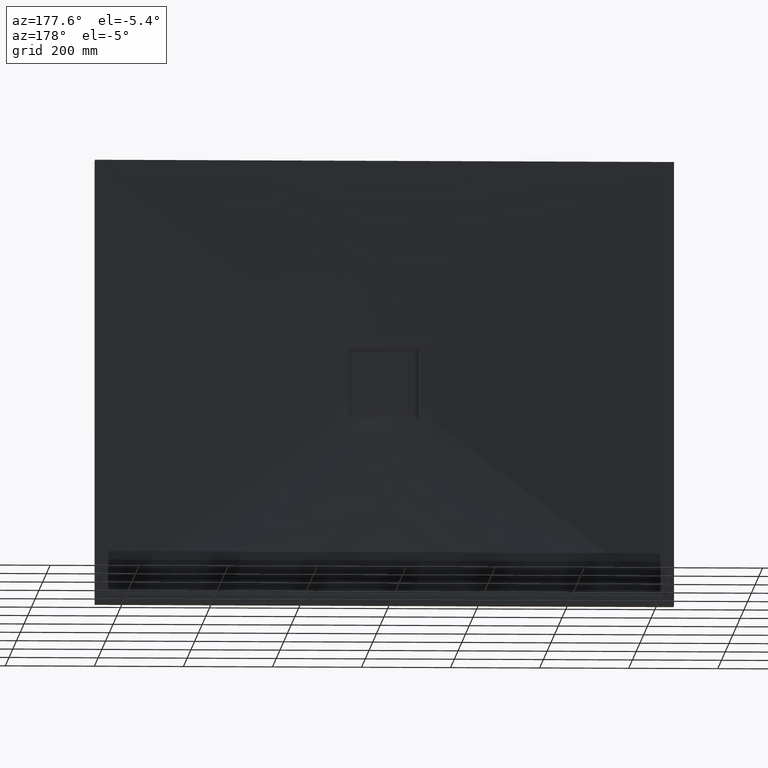
[diagram: clean part render]
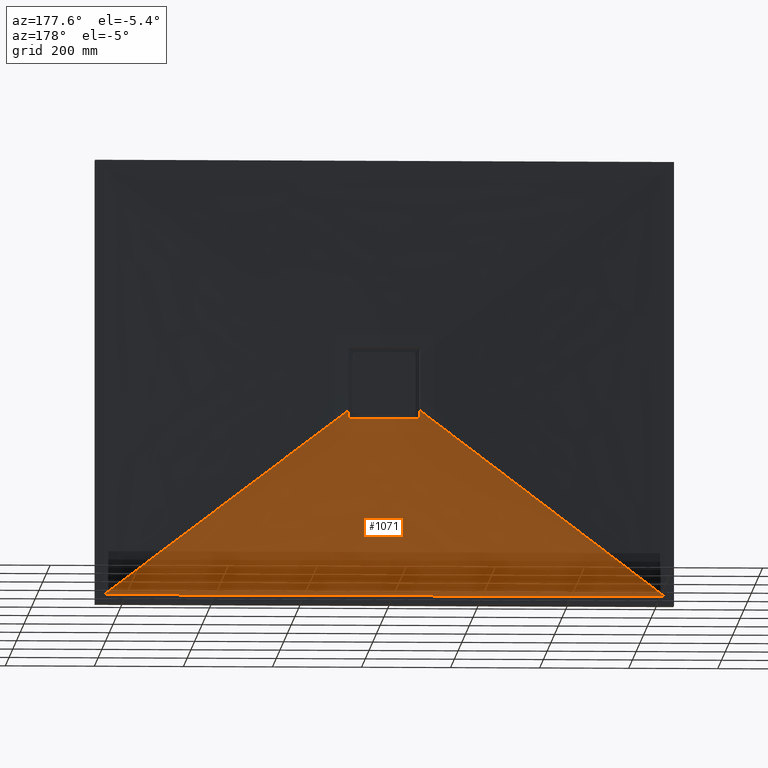
[diagram: same view with one face highlighted and labeled with its STEP entity id]
A machine part, auxiliary view. The second image highlights one B-rep face of the part: STEP entity #1071.
In plain terms, the highlighted face is a freeform B-spline surface patch.
Its self-contained STEP definition (entity closure, byte-faithful):
#17 = CARTESIAN_POINT ( 'NONE',  ( -77.83013383340996000, 20.77111493192463200, -79.99999999999977300 ) ) ;
#60 = CARTESIAN_POINT ( 'NONE',  ( -183.7500000000001100, 35.00000000000000000, -479.9999999999997700 ) ) ;
#69 = VERTEX_POINT ( 'NONE', #1480 ) ;
#120 = CARTESIAN_POINT ( 'NONE',  ( -62.02765094549793200, 20.00000000000000400, -50.59249595847453000 ) ) ;
#128 = B_SPLINE_SURFACE_WITH_KNOTS ( 'NONE', 3, 1, ( 
 ( #1406, #460 ),
 ( #1544, #120 ),
 ( #1231, #620 ),
 ( #930, #1149 ),
 ( #1191, #1207 ),
 ( #840, #1271 ),
 ( #3098, #3223 ),
 ( #2717, #1665 ),
 ( #2258, #215 ),
 ( #1895, #2247 ),
 ( #2444, #2519 ),
 ( #2743, #2526 ),
 ( #60, #2722 ),
 ( #3010, #1915 ),
 ( #2237, #2582 ),
 ( #2861, #2637 ),
 ( #2923, #2802 ),
 ( #3229, #2699 ),
 ( #1807, #3087 ),
 ( #974, #1418 ),
 ( #3151, #2707 ),
 ( #3214, #2860 ),
 ( #380, #1387 ),
 ( #1792, #1602 ),
 ( #1627, #3210 ),
 ( #1280, #2422 ),
 ( #3231, #3052 ),
 ( #291, #3041 ),
 ( #3150, #3130 ),
 ( #1205, #1634 ),
 ( #2627, #2652 ),
 ( #2799, #2788 ),
 ( #1744, #1794 ),
 ( #1682, #1570 ) ),
 .UNSPECIFIED., .F., .F., .F.,
 ( 4, 2, 2, 2, 2, 2, 2, 2, 2, 2, 2, 2, 2, 2, 2, 2, 4 ),
 ( 2, 2 ),
 ( 0.0000000000000000000, 0.06249999999999998600, 0.1249999999999999700, 0.1874999999999999400, 0.2499999999999999400, 0.3124999999999999400, 0.3749999999999999400, 0.4375000000000000000, 0.5000000000000000000, 0.5625000000000000000, 0.6250000000000000000, 0.6875000000000000000, 0.7499999999999998900, 0.8124999999999998900, 0.8749999999999998900, 0.9374999999999998900, 1.000000000000000000 ),
 ( 0.0000000000000000000, 1.000000000000000000 ),
 .UNSPECIFIED. ) ;
#178 = DIRECTION ( 'NONE',  ( -0.7952552694127662500, 0.02106207004695746800, -0.6059087766954408500 ) ) ;
#208 = CARTESIAN_POINT ( 'NONE',  ( -79.99999999999988600, 20.74732183500850600, -77.66504128352703200 ) ) ;
#215 = CARTESIAN_POINT ( 'NONE',  ( -40.08407614180718100, 20.00000000000000000, -69.30328596002011900 ) ) ;
#291 = CARTESIAN_POINT ( 'NONE',  ( 419.9999999999998300, 35.00000000000000000, -479.9999999999997700 ) ) ;
#301 = CARTESIAN_POINT ( 'NONE',  ( -79.48917334443649500, 20.77024405458885800, -79.02310493736166600 ) ) ;
#306 = CARTESIAN_POINT ( 'NONE',  ( -79.87240746309515800, 20.75946612219778900, -78.30529689576413000 ) ) ;
#380 = CARTESIAN_POINT ( 'NONE',  ( 209.9999999999999700, 35.00000000000000000, -479.9999999999997700 ) ) ;
#397 = CARTESIAN_POINT ( 'NONE',  ( -77.49999999999990100, 20.76700183150386500, -79.99999999999978700 ) ) ;
#427 = CARTESIAN_POINT ( 'NONE',  ( -79.38368841958650500, 20.77173863210858300, -79.15175372211837200 ) ) ;
#460 = CARTESIAN_POINT ( 'NONE',  ( -63.63453760259979200, 20.00000000000000000, -48.48345722102833100 ) ) ;
#555 = CARTESIAN_POINT ( 'NONE',  ( -630.0000000000000000, 35.00000000000000000, -479.9999999999997700 ) ) ;
#567 = CARTESIAN_POINT ( 'NONE',  ( -12.91761545422881800, 19.99999999479202700, -79.99999999999990100 ) ) ;
#568 = DIRECTION ( 'NONE',  ( -1.000000000000000000, 0.0000000000000000000, 0.0000000000000000000 ) ) ;
#576 = CARTESIAN_POINT ( 'NONE',  ( 80.00000000000007100, 20.43343380248132800, -60.95238095238072900 ) ) ;
#614 = EDGE_CURVE ( 'NONE', #69, #951, #2820, .T. ) ;
#620 = CARTESIAN_POINT ( 'NONE',  ( -60.27596481643419700, 19.99999999999999600, -52.67385688764414900 ) ) ;
#676 = B_SPLINE_CURVE_WITH_KNOTS ( 'NONE', 3,
 ( #2911, #2907, #2710, #2679, #2654, #2645, #2638, #2603, #2592, #2583, #2578, #2576, #2570, #2565, #2562, #2555 ),
 .UNSPECIFIED., .F., .F.,
 ( 4, 2, 2, 2, 2, 2, 2, 4 ),
 ( 0.0000000000000000000, 0.0004882090771414265800, 0.0009764181542828531500, 0.001464627231424279700, 0.001952836308565706300, 0.002441045385707133100, 0.002929254462848559500, 0.003905672617131428200 ),
 .UNSPECIFIED. ) ;
#697 = CARTESIAN_POINT ( 'NONE',  ( 80.00000000000007100, 20.62615168107612700, -71.98439320507120000 ) ) ;
#710 = VERTEX_POINT ( 'NONE', #2530 ) ;
#729 = EDGE_LOOP ( 'NONE', ( #1965, #1341, #2070, #1333, #1998, #2038, #2461, #1330 ) ) ;
#758 = VERTEX_POINT ( 'NONE', #2394 ) ;
#768 = CARTESIAN_POINT ( 'NONE',  ( -25.83430992047735600, 20.12761234536860000, -79.99999999999981500 ) ) ;
#805 = CARTESIAN_POINT ( 'NONE',  ( -79.99999999999990100, 20.74380144834592700, -77.49999999999978700 ) ) ;
#812 = CARTESIAN_POINT ( 'NONE',  ( -79.99999999999990100, 20.62615168107612000, -71.98439320507118600 ) ) ;
#840 = CARTESIAN_POINT ( 'NONE',  ( -446.2500000000001700, 35.00000000000000000, -479.9999999999997700 ) ) ;
#846 = CARTESIAN_POINT ( 'NONE',  ( -79.99999999999990100, 20.52223896363835500, -66.46852875761838700 ) ) ;
#857 = CARTESIAN_POINT ( 'NONE',  ( -79.99999999999990100, 20.43343380248133200, -60.95238095238072900 ) ) ;
#930 = CARTESIAN_POINT ( 'NONE',  ( -525.0000000000000000, 35.00000000000000000, -479.9999999999997700 ) ) ;
#951 = VERTEX_POINT ( 'NONE', #555 ) ;
#974 = CARTESIAN_POINT ( 'NONE',  ( 104.9999999999999600, 35.00000000000000000, -479.9999999999997700 ) ) ;
#1008 = CARTESIAN_POINT ( 'NONE',  ( 630.0000000000000000, 35.00000000000000000, -479.9999999999997700 ) ) ;
#1071 = ADVANCED_FACE ( 'NONE', ( #1566 ), #128, .F. ) ;
#1094 = CARTESIAN_POINT ( 'NONE',  ( -79.99999999999990100, 20.74380144834592700, -77.49999999999978700 ) ) ;
#1149 = CARTESIAN_POINT ( 'NONE',  ( -56.47447127145660100, 19.99999999999999600, -56.73060222297532100 ) ) ;
#1191 = CARTESIAN_POINT ( 'NONE',  ( -498.7500000000000600, 35.00000000000000000, -479.9999999999997700 ) ) ;
#1192 = CARTESIAN_POINT ( 'NONE',  ( -78.15820142488065900, 20.77371266000730900, -79.93366064027218000 ) ) ;
#1205 = CARTESIAN_POINT ( 'NONE',  ( 498.7499999999998900, 35.00000000000000000, -479.9999999999997700 ) ) ;
#1207 = CARTESIAN_POINT ( 'NONE',  ( -54.42457515775831900, 20.00000000000000700, -58.70591302239565600 ) ) ;
#1231 = CARTESIAN_POINT ( 'NONE',  ( -577.5000000000000000, 35.00000000000000000, -479.9999999999997700 ) ) ;
#1271 = CARTESIAN_POINT ( 'NONE',  ( -50.02882088416853900, 19.99999999999999600, -62.49428522541358400 ) ) ;
#1280 = CARTESIAN_POINT ( 'NONE',  ( 341.2499999999998300, 35.00000000000000000, -479.9999999999997200 ) ) ;
#1294 = CARTESIAN_POINT ( 'NONE',  ( -77.49999999999990100, 20.76700183150386500, -79.99999999999978700 ) ) ;
#1316 = EDGE_CURVE ( 'NONE', #710, #3092, #2483, .T. ) ;
#1330 = ORIENTED_EDGE ( 'NONE', *, *, #614, .T. ) ;
#1333 = ORIENTED_EDGE ( 'NONE', *, *, #2155, .T. ) ;
#1339 = CARTESIAN_POINT ( 'NONE',  ( -64.58359099330736800, 20.60607773968488500, -79.99999999999978700 ) ) ;
#1341 = ORIENTED_EDGE ( 'NONE', *, *, #3048, .T. ) ;
#1356 = CARTESIAN_POINT ( 'NONE',  ( 80.00000000000007100, 20.74380144834592300, -77.49999999999981500 ) ) ;
#1387 = CARTESIAN_POINT ( 'NONE',  ( 25.74669117446027400, 20.00000000000000700, -75.81091631001236000 ) ) ;
#1406 = CARTESIAN_POINT ( 'NONE',  ( -630.0000000000000000, 35.00000000000000000, -479.9999999999997700 ) ) ;
#1418 = CARTESIAN_POINT ( 'NONE',  ( 13.13176673591431200, 20.00000000000000700, -78.98338861590235600 ) ) ;
#1474 = CARTESIAN_POINT ( 'NONE',  ( 12.91761716792308200, 20.00000000520797300, -79.99999999999988600 ) ) ;
#1480 = CARTESIAN_POINT ( 'NONE',  ( 630.0000000000000000, 35.00000000000000000, -479.9999999999997700 ) ) ;
#1544 = CARTESIAN_POINT ( 'NONE',  ( -603.7500000000000000, 35.00000000000000000, -479.9999999999997700 ) ) ;
#1557 = B_SPLINE_CURVE_WITH_KNOTS ( 'NONE', 3,
 ( #1294, #1339, #1991, #768, #567, #1474, #1590, #1694, #2338, #2456 ),
 .UNSPECIFIED., .F., .F.,
 ( 4, 2, 2, 2, 4 ),
 ( 0.0000000000000000000, 0.03875223411165092800, 0.07750446822330185600, 0.1162567023349528100, 0.1550089364466037100 ),
 .UNSPECIFIED. ) ;
#1562 = CARTESIAN_POINT ( 'NONE',  ( 80.00000000000007100, 20.52223896363834800, -66.46852875761837300 ) ) ;
#1566 = FACE_OUTER_BOUND ( 'NONE', #729, .T. ) ;
#1568 = CARTESIAN_POINT ( 'NONE',  ( 80.00000000000007100, 20.43343380248132800, -60.95238095238072900 ) ) ;
#1570 = CARTESIAN_POINT ( 'NONE',  ( 63.63453760260011200, 20.00000000000000000, -48.48345722102835300 ) ) ;
#1590 = CARTESIAN_POINT ( 'NONE',  ( 25.83431059924156500, 20.12761235266777500, -79.99999999999982900 ) ) ;
#1602 = CARTESIAN_POINT ( 'NONE',  ( 31.70444263281839500, 20.00000000000000400, -73.51881021574720900 ) ) ;
#1627 = CARTESIAN_POINT ( 'NONE',  ( 288.7499999999998300, 35.00000000000000000, -479.9999999999997700 ) ) ;
#1634 = CARTESIAN_POINT ( 'NONE',  ( 54.42457515775861100, 20.00000000000000000, -58.70591302239567000 ) ) ;
#1663 = VERTEX_POINT ( 'NONE', #1094 ) ;
#1665 = CARTESIAN_POINT ( 'NONE',  ( -42.71053736607542100, 20.00000000000000000, -67.71180736043912400 ) ) ;
#1682 = CARTESIAN_POINT ( 'NONE',  ( 630.0000000000000000, 35.00000000000000000, -479.9999999999997700 ) ) ;
#1694 = CARTESIAN_POINT ( 'NONE',  ( 51.66733386739112200, 20.43308867103673500, -79.99999999999982900 ) ) ;
#1744 = CARTESIAN_POINT ( 'NONE',  ( 603.7500000000000000, 35.00000000000000000, -479.9999999999997700 ) ) ;
#1792 = CARTESIAN_POINT ( 'NONE',  ( 262.4999999999998900, 35.00000000000000000, -479.9999999999997700 ) ) ;
#1794 = CARTESIAN_POINT ( 'NONE',  ( 62.02765094549825200, 20.00000000000000400, -50.59249595847457200 ) ) ;
#1807 = CARTESIAN_POINT ( 'NONE',  ( 52.49999999999995000, 35.00000000000000000, -479.9999999999997700 ) ) ;
#1818 = VERTEX_POINT ( 'NONE', #2782 ) ;
#1877 = CARTESIAN_POINT ( 'NONE',  ( -79.15324827446951900, 20.77391981643277300, -79.38237683888743800 ) ) ;
#1895 = CARTESIAN_POINT ( 'NONE',  ( -288.7500000000001700, 35.00000000000000000, -479.9999999999997700 ) ) ;
#1905 = VERTEX_POINT ( 'NONE', #2573 ) ;
#1915 = CARTESIAN_POINT ( 'NONE',  ( -16.35806514207124000, 19.99999999999999300, -78.37722261512209300 ) ) ;
#1965 = ORIENTED_EDGE ( 'NONE', *, *, #2075, .F. ) ;
#1991 = CARTESIAN_POINT ( 'NONE',  ( -51.66733347422316300, 20.43308866566028900, -79.99999999999984400 ) ) ;
#1998 = ORIENTED_EDGE ( 'NONE', *, *, #2862, .T. ) ;
#2038 = ORIENTED_EDGE ( 'NONE', *, *, #1316, .T. ) ;
#2064 = B_SPLINE_CURVE_WITH_KNOTS ( 'NONE', 3,
 ( #857, #846, #812, #805 ),
 .UNSPECIFIED., .F., .F.,
 ( 4, 4 ),
 ( 0.0000000000000000000, 0.01655052942418231900 ),
 .UNSPECIFIED. ) ;
#2070 = ORIENTED_EDGE ( 'NONE', *, *, #2463, .T. ) ;
#2075 = EDGE_CURVE ( 'NONE', #1905, #951, #2454, .T. ) ;
#2098 = CARTESIAN_POINT ( 'NONE',  ( -346.8172688012999200, 27.50000000000000400, -264.2417286105140300 ) ) ;
#2137 = B_SPLINE_CURVE_WITH_KNOTS ( 'NONE', 3,
 ( #3033, #208, #2752, #3066, #306, #2703, #3298, #301, #427, #1877, #2606, #2672, #2809, #1192, #17, #397 ),
 .UNSPECIFIED., .F., .F.,
 ( 4, 2, 2, 2, 2, 2, 2, 4 ),
 ( 0.0000000000000000000, 0.0004882091195988505500, 0.0009764182391977010900, 0.001464627358796551500, 0.001952836478395402200, 0.002441045597994252800, 0.002929254717593103100, 0.003905672956790787900 ),
 .UNSPECIFIED. ) ;
#2155 = EDGE_CURVE ( 'NONE', #1818, #758, #1557, .T. ) ;
#2237 = CARTESIAN_POINT ( 'NONE',  ( -105.0000000000000700, 35.00000000000000000, -479.9999999999997700 ) ) ;
#2247 = CARTESIAN_POINT ( 'NONE',  ( -34.58101931222903100, 19.99999999999999600, -72.20686745958281000 ) ) ;
#2258 = CARTESIAN_POINT ( 'NONE',  ( -341.2500000000001700, 35.00000000000000000, -479.9999999999997700 ) ) ;
#2298 = DIRECTION ( 'NONE',  ( -0.7952552694127661400, -0.02106207004695747500, 0.6059087766954409600 ) ) ;
#2338 = CARTESIAN_POINT ( 'NONE',  ( 64.58359117223096700, 20.60607774191406700, -79.99999999999977300 ) ) ;
#2363 = VECTOR ( 'NONE', #178, 1000.000000000000100 ) ;
#2394 = CARTESIAN_POINT ( 'NONE',  ( 77.50000000000007100, 20.76700183150386500, -79.99999999999981500 ) ) ;
#2422 = CARTESIAN_POINT ( 'NONE',  ( 40.08407614180748600, 20.00000000000000000, -69.30328596002011900 ) ) ;
#2444 = CARTESIAN_POINT ( 'NONE',  ( -262.5000000000001100, 35.00000000000000000, -479.9999999999997700 ) ) ;
#2454 = LINE ( 'NONE', #2098, #2363 ) ;
#2456 = CARTESIAN_POINT ( 'NONE',  ( 77.50000000000007100, 20.76700183150386500, -79.99999999999981500 ) ) ;
#2461 = ORIENTED_EDGE ( 'NONE', *, *, #2925, .F. ) ;
#2463 = EDGE_CURVE ( 'NONE', #1663, #1818, #2137, .T. ) ;
#2464 = CARTESIAN_POINT ( 'NONE',  ( 346.8172688013000300, 27.50000000000000400, -264.2417286105140300 ) ) ;
#2483 = B_SPLINE_CURVE_WITH_KNOTS ( 'NONE', 3,
 ( #1356, #697, #1562, #1568 ),
 .UNSPECIFIED., .F., .F.,
 ( 4, 4 ),
 ( 0.0000000000000000000, 0.01655052942418238200 ),
 .UNSPECIFIED. ) ;
#2519 = CARTESIAN_POINT ( 'NONE',  ( -31.70444263281809700, 20.00000000000000700, -73.51881021574720900 ) ) ;
#2526 = CARTESIAN_POINT ( 'NONE',  ( -25.74669117445996500, 20.00000000000000000, -75.81091631001236000 ) ) ;
#2530 = CARTESIAN_POINT ( 'NONE',  ( 80.00000000000007100, 20.74380144834592300, -77.49999999999981500 ) ) ;
#2553 = LINE ( 'NONE', #2464, #3284 ) ;
#2555 = CARTESIAN_POINT ( 'NONE',  ( 80.00000000000007100, 20.74380144834592300, -77.49999999999981500 ) ) ;
#2562 = CARTESIAN_POINT ( 'NONE',  ( 80.00000000000008500, 20.75084220781003100, -77.83008191722649400 ) ) ;
#2565 = CARTESIAN_POINT ( 'NONE',  ( 79.93368285783046200, 20.75705102764942500, -78.15810168313754500 ) ) ;
#2570 = CARTESIAN_POINT ( 'NONE',  ( 79.74649166720496400, 20.76445391716052700, -78.60894215748159300 ) ) ;
#2573 = CARTESIAN_POINT ( 'NONE',  ( -79.99999999999990100, 20.43343380248133200, -60.95238095238072900 ) ) ;
#2576 = CARTESIAN_POINT ( 'NONE',  ( 79.66878316668174900, 20.76663679275834400, -78.75433956627051700 ) ) ;
#2578 = CARTESIAN_POINT ( 'NONE',  ( 79.48599130760138100, 20.77029712327749400, -79.02735938721890800 ) ) ;
#2582 = CARTESIAN_POINT ( 'NONE',  ( -13.13176673591400600, 20.00000000000000400, -78.98338861590234200 ) ) ;
#2583 = CARTESIAN_POINT ( 'NONE',  ( 79.38250338781479300, 20.77175338085107000, -79.15310396375990400 ) ) ;
#2592 = CARTESIAN_POINT ( 'NONE',  ( 79.15190116309699400, 20.77392899616415200, -79.38355893655909800 ) ) ;
#2603 = CARTESIAN_POINT ( 'NONE',  ( 79.02325937032105700, 20.77464682401055300, -79.48905620670426200 ) ) ;
#2606 = CARTESIAN_POINT ( 'NONE',  ( -79.02751007781263600, 20.77462972907653000, -79.48587555323236100 ) ) ;
#2627 = CARTESIAN_POINT ( 'NONE',  ( 524.9999999999997700, 35.00000000000000000, -479.9999999999997700 ) ) ;
#2637 = CARTESIAN_POINT ( 'NONE',  ( -6.603559328199009000, 20.00000000000000700, -79.79481173018750400 ) ) ;
#2638 = CARTESIAN_POINT ( 'NONE',  ( 78.75158657020142500, 20.77526099015685900, -79.67029831129067900 ) ) ;
#2645 = CARTESIAN_POINT ( 'NONE',  ( 78.60804519854212900, 20.77517205371263400, -79.74701160803317600 ) ) ;
#2652 = CARTESIAN_POINT ( 'NONE',  ( 56.47447127145692000, 19.99999999999999600, -56.73060222297532800 ) ) ;
#2654 = CARTESIAN_POINT ( 'NONE',  ( 78.30541218609803900, 20.77418561963472500, -79.87236939348251500 ) ) ;
#2672 = CARTESIAN_POINT ( 'NONE',  ( -78.75450106361333300, 20.77526169303582300, -79.66868988842067300 ) ) ;
#2679 = CARTESIAN_POINT ( 'NONE',  ( 78.14672664606789000, 20.77327917103214400, -79.92038139260090200 ) ) ;
#2699 = CARTESIAN_POINT ( 'NONE',  ( 3.301827798377353000, 19.99999999999999300, -79.99999999999985800 ) ) ;
#2703 = CARTESIAN_POINT ( 'NONE',  ( -79.74707804726944000, 20.76443879332035200, -78.60790816891865500 ) ) ;
#2707 = CARTESIAN_POINT ( 'NONE',  ( 16.35806514207155300, 19.99999999999999600, -78.37722261512209300 ) ) ;
#2710 = CARTESIAN_POINT ( 'NONE',  ( 77.82738000735071200, 20.77071729019397800, -79.98381234620691800 ) ) ;
#2717 = CARTESIAN_POINT ( 'NONE',  ( -367.5000000000001700, 35.00000000000000000, -479.9999999999997700 ) ) ;
#2722 = CARTESIAN_POINT ( 'NONE',  ( -22.66559547024484900, 19.99999999999999600, -76.79092460722077400 ) ) ;
#2743 = CARTESIAN_POINT ( 'NONE',  ( -210.0000000000001400, 35.00000000000000000, -479.9999999999997700 ) ) ;
#2752 = CARTESIAN_POINT ( 'NONE',  ( -79.98381720006142400, 20.75059080452589900, -77.82733149048634400 ) ) ;
#2782 = CARTESIAN_POINT ( 'NONE',  ( -77.49999999999990100, 20.76700183150386500, -79.99999999999978700 ) ) ;
#2788 = CARTESIAN_POINT ( 'NONE',  ( 60.27596481643451700, 19.99999999999999600, -52.67385688764415600 ) ) ;
#2799 = CARTESIAN_POINT ( 'NONE',  ( 577.4999999999998900, 35.00000000000000000, -479.9999999999997700 ) ) ;
#2802 = CARTESIAN_POINT ( 'NONE',  ( -3.301827798377047000, 20.00000000000000000, -79.99999999999987200 ) ) ;
#2809 = CARTESIAN_POINT ( 'NONE',  ( -78.60908096893301400, 20.77517195702116100, -79.74642442812596200 ) ) ;
#2820 = LINE ( 'NONE', #1008, #3020 ) ;
#2860 = CARTESIAN_POINT ( 'NONE',  ( 22.66559547024515500, 20.00000000000000000, -76.79092460722078800 ) ) ;
#2861 = CARTESIAN_POINT ( 'NONE',  ( -52.50000000000003600, 35.00000000000000000, -479.9999999999997700 ) ) ;
#2862 = EDGE_CURVE ( 'NONE', #758, #710, #676, .T. ) ;
#2907 = CARTESIAN_POINT ( 'NONE',  ( 77.66506628799172100, 20.76905837388118300, -79.99999999999982900 ) ) ;
#2911 = CARTESIAN_POINT ( 'NONE',  ( 77.50000000000007100, 20.76700183150386500, -79.99999999999981500 ) ) ;
#2923 = CARTESIAN_POINT ( 'NONE',  ( -26.25000000000003600, 35.00000000000000000, -479.9999999999997700 ) ) ;
#2925 = EDGE_CURVE ( 'NONE', #69, #3092, #2553, .T. ) ;
#3010 = CARTESIAN_POINT ( 'NONE',  ( -131.2500000000000900, 35.00000000000000000, -479.9999999999997700 ) ) ;
#3020 = VECTOR ( 'NONE', #568, 1000.000000000000000 ) ;
#3033 = CARTESIAN_POINT ( 'NONE',  ( -79.99999999999990100, 20.74380144834592700, -77.49999999999978700 ) ) ;
#3041 = CARTESIAN_POINT ( 'NONE',  ( 47.68289328325977300, 19.99999999999999300, -64.30723556687411200 ) ) ;
#3048 = EDGE_CURVE ( 'NONE', #1905, #1663, #2064, .T. ) ;
#3052 = CARTESIAN_POINT ( 'NONE',  ( 42.71053736607574100, 20.00000000000000000, -67.71180736043915300 ) ) ;
#3066 = CARTESIAN_POINT ( 'NONE',  ( -79.92040460584102800, 20.75664988095737200, -78.14663384694003400 ) ) ;
#3087 = CARTESIAN_POINT ( 'NONE',  ( 6.603559328199316300, 20.00000000000000400, -79.79481173018751900 ) ) ;
#3092 = VERTEX_POINT ( 'NONE', #576 ) ;
#3098 = CARTESIAN_POINT ( 'NONE',  ( -420.0000000000001700, 35.00000000000000000, -479.9999999999997700 ) ) ;
#3130 = CARTESIAN_POINT ( 'NONE',  ( 50.02882088416886600, 20.00000000000000400, -62.49428522541360600 ) ) ;
#3150 = CARTESIAN_POINT ( 'NONE',  ( 446.2499999999998300, 35.00000000000000000, -479.9999999999997700 ) ) ;
#3151 = CARTESIAN_POINT ( 'NONE',  ( 131.2499999999999400, 35.00000000000000000, -479.9999999999997700 ) ) ;
#3210 = CARTESIAN_POINT ( 'NONE',  ( 34.58101931222935100, 19.99999999999999600, -72.20686745958282400 ) ) ;
#3214 = CARTESIAN_POINT ( 'NONE',  ( 183.7499999999999700, 35.00000000000000000, -479.9999999999997700 ) ) ;
#3223 = CARTESIAN_POINT ( 'NONE',  ( -47.68289328325945300, 19.99999999999999300, -64.30723556687405600 ) ) ;
#3229 = CARTESIAN_POINT ( 'NONE',  ( 26.24999999999995000, 35.00000000000000000, -479.9999999999997700 ) ) ;
#3231 = CARTESIAN_POINT ( 'NONE',  ( 367.4999999999998300, 35.00000000000000000, -479.9999999999997200 ) ) ;
#3284 = VECTOR ( 'NONE', #2298, 1000.000000000000100 ) ;
#3298 = CARTESIAN_POINT ( 'NONE',  ( -79.67038075609809800, 20.76659386712851000, -78.75144181566351200 ) ) ;